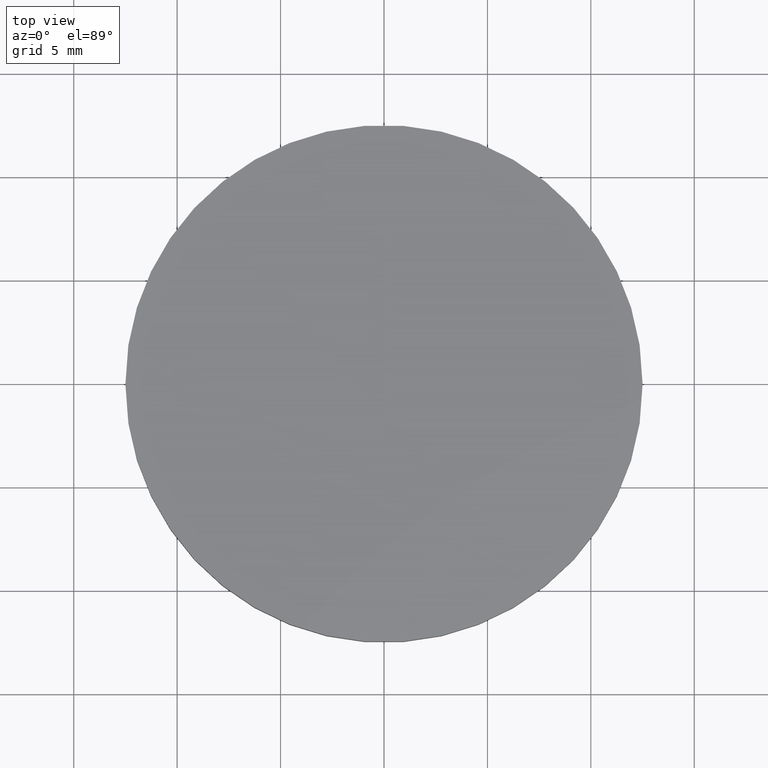
[diagram: clean part render]
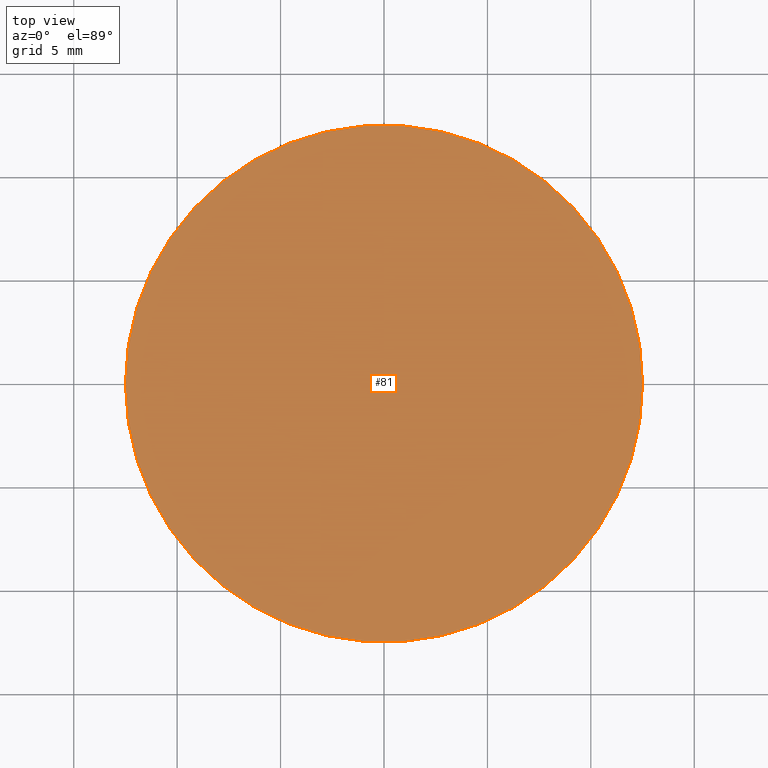
[diagram: same view with one face highlighted and labeled with its STEP entity id]
A machine part, top view. The second image highlights one B-rep face of the part: STEP entity #81.
In plain terms, the highlighted planar face has unit normal (0, 0, 1).
Its self-contained STEP definition (entity closure, byte-faithful):
#3 = CARTESIAN_POINT ( 'NONE',  ( 0.0000000000000000000, 0.0000000000000000000, 2.000000000000000000 ) ) ;
#11 = EDGE_CURVE ( 'NONE', #106, #34, #76, .T. ) ;
#12 = ORIENTED_EDGE ( 'NONE', *, *, #11, .T. ) ;
#20 = AXIS2_PLACEMENT_3D ( 'NONE', #62, #88, #50 ) ;
#34 = VERTEX_POINT ( 'NONE', #107 ) ;
#37 = FACE_OUTER_BOUND ( 'NONE', #111, .T. ) ;
#44 = CARTESIAN_POINT ( 'NONE',  ( 0.0000000000000000000, 0.0000000000000000000, 2.000000000000000000 ) ) ;
#46 = DIRECTION ( 'NONE',  ( 0.0000000000000000000, 0.0000000000000000000, 1.000000000000000000 ) ) ;
#50 = DIRECTION ( 'NONE',  ( 1.000000000000000000, 0.0000000000000000000, -0.0000000000000000000 ) ) ;
#59 = AXIS2_PLACEMENT_3D ( 'NONE', #3, #78, #91 ) ;
#62 = CARTESIAN_POINT ( 'NONE',  ( 0.0000000000000000000, 0.0000000000000000000, 2.000000000000000000 ) ) ;
#64 = EDGE_CURVE ( 'NONE', #34, #106, #138, .T. ) ;
#76 = CIRCLE ( 'NONE', #59, 12.50000000000000000 ) ;
#78 = DIRECTION ( 'NONE',  ( 0.0000000000000000000, 0.0000000000000000000, 1.000000000000000000 ) ) ;
#81 = ADVANCED_FACE ( 'NONE', ( #37 ), #102, .T. ) ;
#88 = DIRECTION ( 'NONE',  ( 0.0000000000000000000, 0.0000000000000000000, 1.000000000000000000 ) ) ;
#91 = DIRECTION ( 'NONE',  ( 1.000000000000000000, 0.0000000000000000000, 0.0000000000000000000 ) ) ;
#92 = DIRECTION ( 'NONE',  ( 1.000000000000000000, 0.0000000000000000000, 0.0000000000000000000 ) ) ;
#99 = AXIS2_PLACEMENT_3D ( 'NONE', #44, #46, #92 ) ;
#102 = PLANE ( 'NONE',  #20 ) ;
#106 = VERTEX_POINT ( 'NONE', #136 ) ;
#107 = CARTESIAN_POINT ( 'NONE',  ( 12.50000000000000000, 1.530808498934191500E-015, 2.000000000000000000 ) ) ;
#111 = EDGE_LOOP ( 'NONE', ( #12, #112 ) ) ;
#112 = ORIENTED_EDGE ( 'NONE', *, *, #64, .T. ) ;
#136 = CARTESIAN_POINT ( 'NONE',  ( -12.50000000000000000, 0.0000000000000000000, 2.000000000000000000 ) ) ;
#138 = CIRCLE ( 'NONE', #99, 12.50000000000000000 ) ;